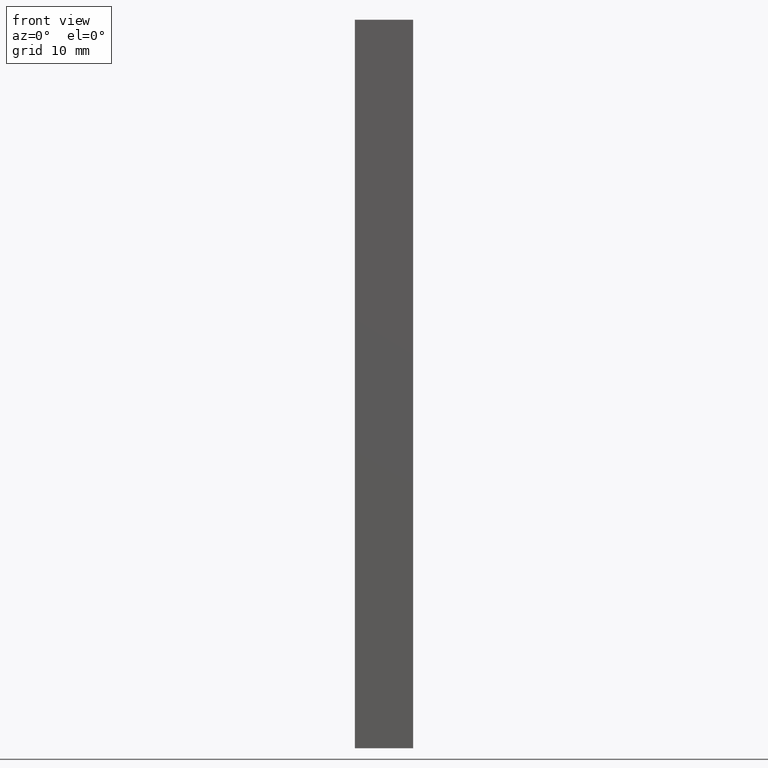
[diagram: clean part render]
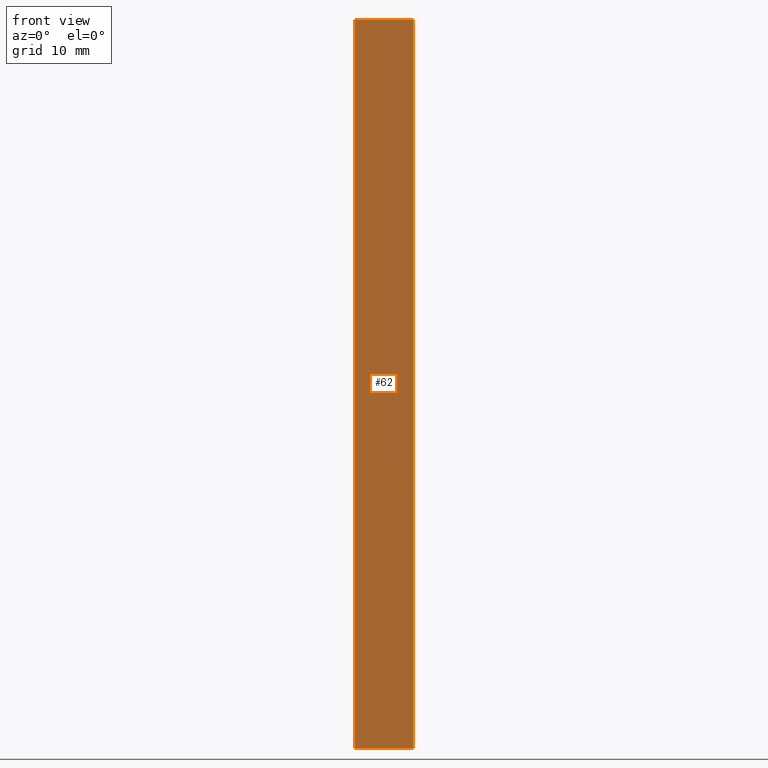
[diagram: same view with one face highlighted and labeled with its STEP entity id]
A machine part, front view. The second image highlights one B-rep face of the part: STEP entity #62.
In plain terms, the highlighted planar face has unit normal (0, -1, 0).
Its self-contained STEP definition (entity closure, byte-faithful):
#19=FACE_OUTER_BOUND('',#23,.T.);
#23=EDGE_LOOP('',(#51,#52,#53,#54));
#25=LINE('',#113,#29);
#26=LINE('',#118,#30);
#27=LINE('',#119,#31);
#28=LINE('',#121,#32);
#29=VECTOR('',#96,10.);
#30=VECTOR('',#101,10.);
#31=VECTOR('',#102,10.);
#32=VECTOR('',#105,10.);
#35=VERTEX_POINT('',#110);
#36=VERTEX_POINT('',#111);
#37=VERTEX_POINT('',#115);
#38=VERTEX_POINT('',#116);
#40=EDGE_CURVE('',#36,#35,#25,.T.);
#42=EDGE_CURVE('',#35,#38,#26,.T.);
#43=EDGE_CURVE('',#37,#36,#27,.T.);
#44=EDGE_CURVE('',#38,#37,#28,.T.);
#51=ORIENTED_EDGE('',*,*,#44,.T.);
#52=ORIENTED_EDGE('',*,*,#43,.T.);
#53=ORIENTED_EDGE('',*,*,#40,.T.);
#54=ORIENTED_EDGE('',*,*,#42,.T.);
#58=PLANE('',#88);
#62=ADVANCED_FACE('',(#19),#58,.T.);
#88=AXIS2_PLACEMENT_3D('',#120,#103,#104);
#96=DIRECTION('',(1.,0.,0.));
#101=DIRECTION('',(0.,0.,1.));
#102=DIRECTION('',(0.,0.,-1.));
#103=DIRECTION('center_axis',(0.,-1.,0.));
#104=DIRECTION('ref_axis',(0.,0.,-1.));
#105=DIRECTION('',(-1.,0.,0.));
#110=CARTESIAN_POINT('',(4.,0.,-50.));
#111=CARTESIAN_POINT('',(-4.,0.,-50.));
#113=CARTESIAN_POINT('',(-4.,0.,-50.));
#115=CARTESIAN_POINT('',(-4.,0.,50.));
#116=CARTESIAN_POINT('',(4.,0.,50.));
#118=CARTESIAN_POINT('',(4.,0.,0.));
#119=CARTESIAN_POINT('',(-4.,0.,0.));
#120=CARTESIAN_POINT('Origin',(4.,0.,0.));
#121=CARTESIAN_POINT('',(-4.,0.,50.));